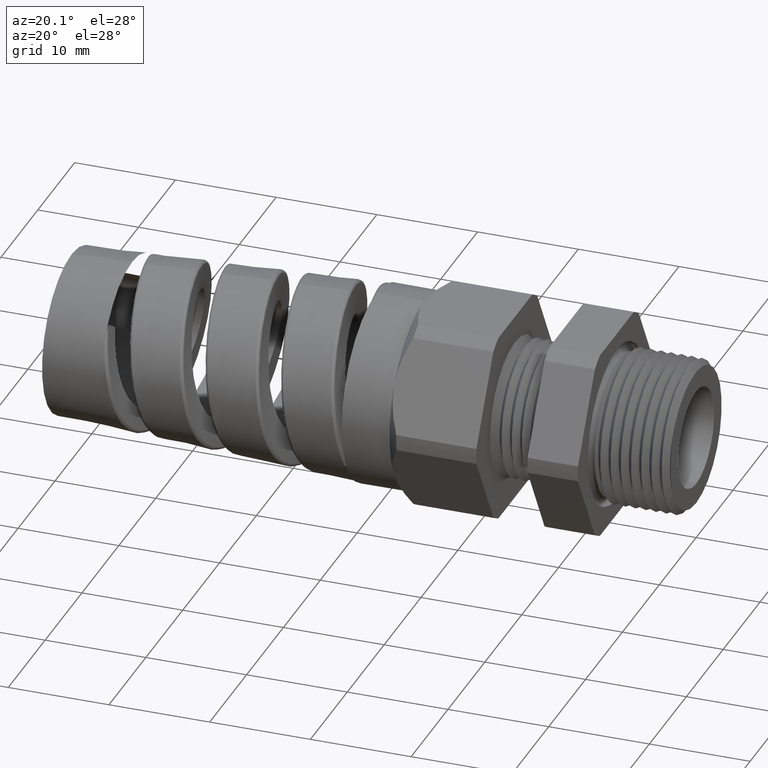
[diagram: clean part render]
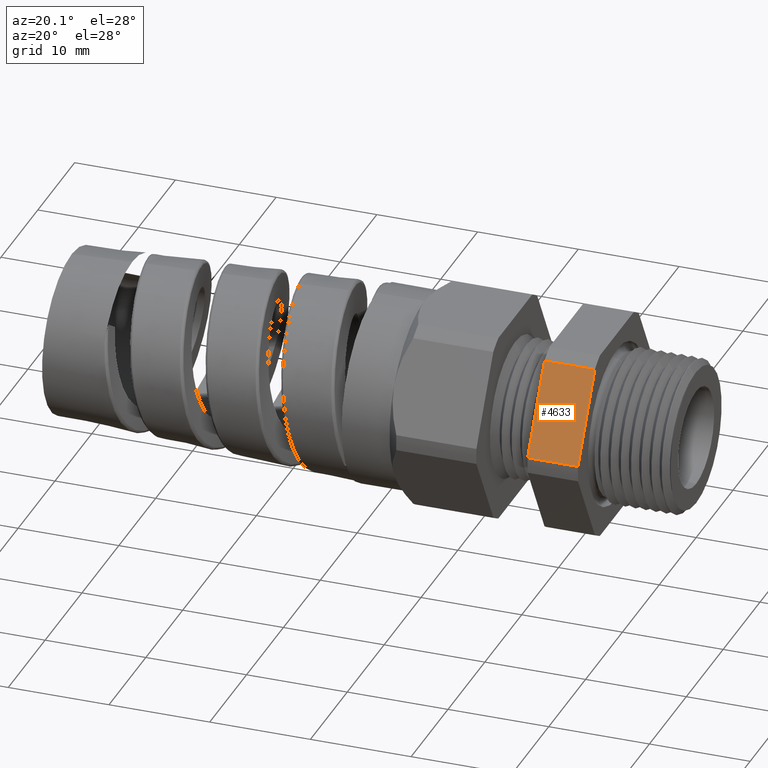
[diagram: same view with one face highlighted and labeled with its STEP entity id]
A machine part, auxiliary view. The second image highlights one B-rep face of the part: STEP entity #4633.
In plain terms, the highlighted planar face has unit normal (0, -0.866, 0.5).
Its self-contained STEP definition (entity closure, byte-faithful):
#327 = EDGE_CURVE ( 'NONE', #353, #354, #4887, .T. ) ;
#353 = VERTEX_POINT ( 'NONE', #4952 ) ;
#354 = VERTEX_POINT ( 'NONE', #4951 ) ;
#765 = VERTEX_POINT ( 'NONE', #6355 ) ;
#767 = VERTEX_POINT ( 'NONE', #6354 ) ;
#867 = EDGE_CURVE ( 'NONE', #765, #767, #6933, .T. ) ;
#2175 = ORIENTED_EDGE ( 'NONE', *, *, #867, .F. ) ;
#2176 = EDGE_LOOP ( 'NONE', ( #2177, #3269, #3267, #2175 ) ) ;
#2177 = ORIENTED_EDGE ( 'NONE', *, *, #4616, .T. ) ;
#3267 = ORIENTED_EDGE ( 'NONE', *, *, #3268, .F. ) ;
#3268 = EDGE_CURVE ( 'NONE', #767, #353, #3819, .T. ) ;
#3269 = ORIENTED_EDGE ( 'NONE', *, *, #327, .F. ) ;
#3816 = DIRECTION ( 'NONE',  ( -1.000000000000000000, 0.0000000000000000000, 0.0000000000000000000 ) ) ;
#3817 = VECTOR ( 'NONE', #3816, 39.37007874015748100 ) ;
#3818 = CARTESIAN_POINT ( 'NONE',  ( 0.0000000000000000000, -0.4150909474475088000, 0.03104138925901167900 ) ) ;
#3819 = LINE ( 'NONE', #3818, #3817 ) ;
#4100 = DIRECTION ( 'NONE',  ( -1.000000000000000000, 0.0000000000000000000, 0.0000000000000000000 ) ) ;
#4101 = VECTOR ( 'NONE', #4100, 39.37007874015748100 ) ;
#4102 = CARTESIAN_POINT ( 'NONE',  ( 0.0000000000000000000, -0.2344281053908203500, 0.3439586107409879900 ) ) ;
#4103 = LINE ( 'NONE', #4102, #4101 ) ;
#4148 = DIRECTION ( 'NONE',  ( 0.0000000000000000000, -0.4999999999999995600, -0.8660254037844389300 ) ) ;
#4149 = DIRECTION ( 'NONE',  ( 0.0000000000000000000, -0.8660254037844389300, 0.4999999999999995600 ) ) ;
#4150 = CARTESIAN_POINT ( 'NONE',  ( 0.0000000000000000000, -0.4150909474475088000, 0.03104138925901186000 ) ) ;
#4151 = AXIS2_PLACEMENT_3D ( 'NONE', #4150, #4149, #4148 ) ;
#4152 = PLANE ( 'NONE',  #4151 ) ;
#4153 = FACE_OUTER_BOUND ( 'NONE', #2176, .T. ) ;
#4616 = EDGE_CURVE ( 'NONE', #765, #354, #4103, .T. ) ;
#4633 = ADVANCED_FACE ( 'NONE', ( #4153 ), #4152, .T. ) ;
#4884 = DIRECTION ( 'NONE',  ( 0.0000000000000000000, 0.4999999999999995600, 0.8660254037844389300 ) ) ;
#4885 = VECTOR ( 'NONE', #4884, 39.37007874015748100 ) ;
#4886 = CARTESIAN_POINT ( 'NONE',  ( -0.5068503937007874400, -0.1372595264191649700, 0.5122595264191642800 ) ) ;
#4887 = LINE ( 'NONE', #4886, #4885 ) ;
#4951 = CARTESIAN_POINT ( 'NONE',  ( -0.5068503937007873300, -0.2344281053908203500, 0.3439586107409879900 ) ) ;
#4952 = CARTESIAN_POINT ( 'NONE',  ( -0.5068503937007873300, -0.4150909474475088000, 0.03104138925901167900 ) ) ;
#6354 = CARTESIAN_POINT ( 'NONE',  ( -0.3099999999999998300, -0.4150909474475088000, 0.03104138925901167900 ) ) ;
#6355 = CARTESIAN_POINT ( 'NONE',  ( -0.3099999999999998300, -0.2344281053908203500, 0.3439586107409879900 ) ) ;
#6926 = DIRECTION ( 'NONE',  ( 0.0000000000000000000, -0.4999999999999995600, -0.8660254037844389300 ) ) ;
#6927 = VECTOR ( 'NONE', #6926, 39.37007874015748100 ) ;
#6928 = CARTESIAN_POINT ( 'NONE',  ( -0.3100000000000000000, -0.1372595264191649700, 0.5122595264191642800 ) ) ;
#6933 = LINE ( 'NONE', #6928, #6927 ) ;